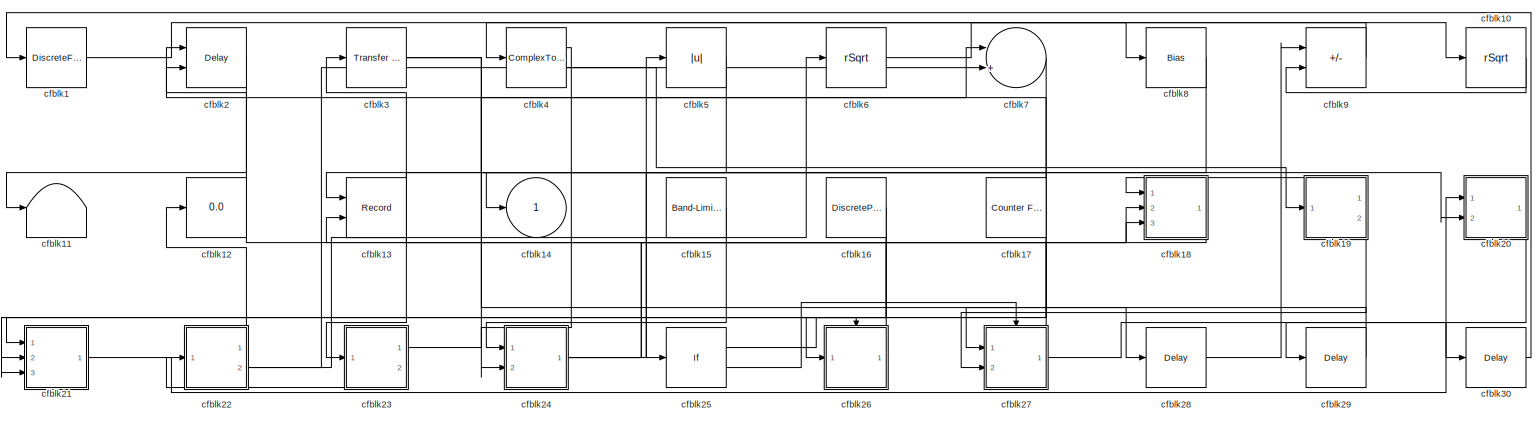
[diagram: root canvas - part 1/1, most of the canvas]
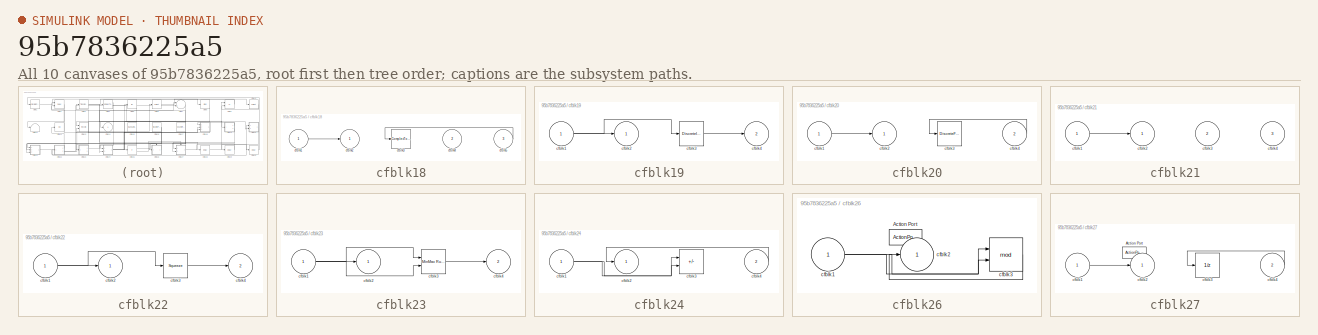
[diagram: thumbnail index - all 10 canvases of the model, root first then tree order]
MODEL slx_95b7836225a5
KIND model
CONFIG AbsTol = auto
CONFIG EnableMultiTasking = off
CONFIG FixedStep = auto
CONFIG MaxStep = auto
CONFIG MinStep = auto
CONFIG RelTol = 1e-3
CONFIG SampleTimeConstraint = Unconstrained
CONFIG SolverName = VariableStepAuto
CONFIG StartTime = 0.0
CONFIG StopTime = 10.0
BLOCK [DiscreteFilter] cfblk1
  InputPortMap = u0
  Ports = [1, 1]
  SampleTime = 1
BLOCK [Sqrt] cfblk10
  AlgorithmType = Newton-Raphson
  Operator = rSqrt
BLOCK [Terminator] cfblk11
BLOCK [Display] cfblk12
  Decimation = 1
  Ports = [1]
BLOCK [Record] cfblk13
  CompatibilityTag = XY
  FileSettingsInternal = {"entries":[{"content":{"excelSettings":{"content":{},"type":"Streamout.ExcelSettings"}},"type":"Streamout.FileSettingStorage","uuid":"12464234-0123-4500-b757-1bcb142e4388"}],"packageUris":["http://schema.mathworks.com/mf0/streamout_blocks/R2020a"],"version":"1.0"}
  Layout = [1 1]
  Ports = [2]
  SignalsInternal = {"entries":[{"content":{"signals":[{"content":{"blockPath":["sampleModel10/cfblk13"],"channel":[],"dimensions":[1],"domain":"sampleModel10/cfblk13","lineColor":"#a2142f","plots":[1],"port":1,"sid":[""],"signalID":351,"signalName":"cfblk7"},"type":"RecordBlkView.Signal","uuid":"addf4039-dc77-4d44-b335-c1f742a5f9f0"},{"content":{"blockPath":["sampleModel10/cfblk13"],"channel":[],"dimensions":[1],"do...<+376ch>
  VisualizationBindings = {"xyplotplugin":{"info":[{"series":[{"bindingParametersList":[{"parameter":"X-Axis","signalID":351,"signalName":"cfblk7"},{"parameter":"Y-Axis","signalID":355,"signalName":"cfblk18"}],"seriesID":13934}],"subplotID":1}]}}
BLOCK [Outport] cfblk14
BLOCK [Reference] cfblk15  REF=simulink/Sources/Band-Limited
White Noise
  Ports = [0, 1]
  SourceBlock = simulink/Sources/Band-Limited\nWhite Noise
  SourceProductBaseCode = SL
  SourceType = Band-Limited White Noise.
BLOCK [DiscretePulseGenerator] cfblk16
  Amplitude = [417409233.958450]
  Period = [99292844.137471]
  PhaseDelay = [2.000000]
  Ports = [0, 1]
  PulseType = Time based
  PulseWidth = 5
BLOCK [Reference] cfblk17  REF=simulink/Sources/Counter
Free-Running
  Ports = [0, 1]
  SourceBlock = simulink/Sources/Counter\nFree-Running
  SourceProductBaseCode = SL
  SourceType = Counter Free-Running
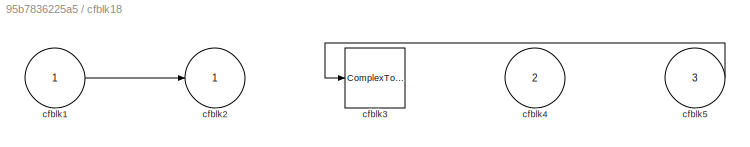
BLOCK [SubSystem] cfblk18
  Ports = [3, 1]
  RequestExecContextInheritance = off
BLOCK [Inport] cfblk18/cfblk1
BLOCK [Outport] cfblk18/cfblk2
BLOCK [ComplexToRealImag] cfblk18/cfblk3
  Ports = [1, 2]
BLOCK [Inport] cfblk18/cfblk4
  Port = 2
BLOCK [Inport] cfblk18/cfblk5
  Port = 3
BLOCK [SubSystem] cfblk19
  Ports = [1, 2]
  RequestExecContextInheritance = off
BLOCK [Inport] cfblk19/cfblk1
BLOCK [Outport] cfblk19/cfblk2
BLOCK [DiscreteIntegrator] cfblk19/cfblk3
  ICPrevOutput = DiscIntNeverNeededParam
  ICPrevScaledInput = DiscIntNeverNeededParam
  InitialConditionSetting = Auto
  Ports = [1, 1]
BLOCK [Outport] cfblk19/cfblk4
  Port = 2
BLOCK [Delay] cfblk2
  DelayLengthSource = Input port
  InputPortMap = u0,p1
  Ports = [2, 1]
  SampleTime = 1
BLOCK [SubSystem] cfblk20
  Ports = [2, 1]
  RequestExecContextInheritance = off
BLOCK [Inport] cfblk20/cfblk1
BLOCK [Outport] cfblk20/cfblk2
BLOCK [DiscreteFilter] cfblk20/cfblk3
  InputPortMap = u0
  Ports = [1, 1]
  SampleTime = 1
BLOCK [Inport] cfblk20/cfblk4
  Port = 2
BLOCK [SubSystem] cfblk21
  Ports = [3, 1]
  RequestExecContextInheritance = off
BLOCK [Inport] cfblk21/cfblk1
BLOCK [Outport] cfblk21/cfblk2
BLOCK [Inport] cfblk21/cfblk3
  Port = 2
BLOCK [Inport] cfblk21/cfblk4
  Port = 3
BLOCK [SubSystem] cfblk22
  Ports = [1, 2]
  RequestExecContextInheritance = off
BLOCK [Inport] cfblk22/cfblk1
BLOCK [Outport] cfblk22/cfblk2
BLOCK [Squeeze] cfblk22/cfblk3
BLOCK [Outport] cfblk22/cfblk4
  Port = 2
BLOCK [SubSystem] cfblk23
  Ports = [1, 2]
  RequestExecContextInheritance = off
BLOCK [Inport] cfblk23/cfblk1
BLOCK [Outport] cfblk23/cfblk2
BLOCK [Reference] cfblk23/cfblk3  REF=simulink/Math
Operations/MinMax
Running
Resettable
  Ports = [2, 1]
  SourceBlock = simulink/Math\nOperations/MinMax\nRunning\nResettable
  SourceProductBaseCode = SL
  SourceType = MinMax Running Resettable
BLOCK [Outport] cfblk23/cfblk4
  Port = 2
BLOCK [SubSystem] cfblk24
  Ports = [2, 1]
  RequestExecContextInheritance = off
BLOCK [Inport] cfblk24/cfblk1
BLOCK [Outport] cfblk24/cfblk2
BLOCK [Sum] cfblk24/cfblk3
  IconShape = rectangular
  Inputs = +-
  Ports = [2, 1]
BLOCK [Inport] cfblk24/cfblk4
  Port = 2
BLOCK [If] cfblk25
  IfExpression = u1 >= 0
  Ports = [1, 2]
  SampleTime = 1
BLOCK [SubSystem] cfblk26
  Ports = [1, 1, 0, 0, 0, 0, 0, 1]
  RequestExecContextInheritance = off
  TreatAsAtomicUnit = on
BLOCK [ActionPort] cfblk26/Action Port
  ActionPortLabel = if(u1 >= 0)
BLOCK [Inport] cfblk26/cfblk1
BLOCK [Outport] cfblk26/cfblk2
BLOCK [Math] cfblk26/cfblk3
  Operator = mod
  Ports = [2, 1]
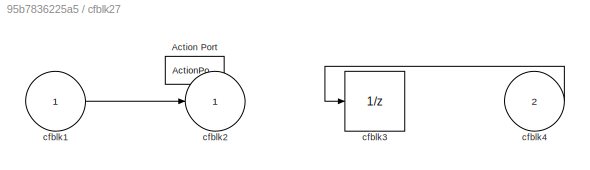
BLOCK [SubSystem] cfblk27
  Ports = [2, 1, 0, 0, 0, 0, 0, 1]
  RequestExecContextInheritance = off
  TreatAsAtomicUnit = on
BLOCK [ActionPort] cfblk27/Action Port
  ActionPortLabel = else
BLOCK [Inport] cfblk27/cfblk1
BLOCK [Outport] cfblk27/cfblk2
BLOCK [UnitDelay] cfblk27/cfblk3
  HasFrameUpgradeWarning = on
  SampleTime = -1
BLOCK [Inport] cfblk27/cfblk4
  Port = 2
BLOCK [Delay] cfblk28
  InputPortMap = u0
  Ports = [1, 1]
  SampleTime = 1
BLOCK [Delay] cfblk29
  InputPortMap = u0
  Ports = [1, 1]
  SampleTime = 1
BLOCK [Reference] cfblk3  REF=simulink/Discrete/Transfer Fcn
Real Zero
  Ports = [1, 1]
  SourceBlock = simulink/Discrete/Transfer Fcn\nReal Zero
  SourceProductBaseCode = SL
  SourceType = Transfer Fcn Real Zero
BLOCK [Delay] cfblk30
  InputPortMap = u0
  Ports = [1, 1]
  SampleTime = 1
BLOCK [ComplexToRealImag] cfblk4
  Ports = [1, 2]
BLOCK [Abs] cfblk5
  SaturateOnIntegerOverflow = off
BLOCK [Sqrt] cfblk6
  AlgorithmType = Newton-Raphson
  Operator = rSqrt
BLOCK [Sum] cfblk7
  Inputs = |++
  Ports = [2, 1]
BLOCK [Bias] cfblk8
  Bias = [-398381818.678550]
  SaturateOnIntegerOverflow = off
BLOCK [Sum] cfblk9
  IconShape = rectangular
  Inputs = --
  Ports = [2, 1]
LINE cfblk10:1 -> cfblk9:2
LINE cfblk15:1 -> cfblk24:1
NET cfblk16:1 -> cfblk21:1, cfblk26:1
NET cfblk17:1 -> cfblk14:1, cfblk21:2, cfblk21:3, cfblk2:2
LINE cfblk18/cfblk1:1 -> cfblk18/cfblk2:1
LINE cfblk18/cfblk5:1 -> cfblk18/cfblk3:1
LINE cfblk18:1 -> cfblk13:2
NET cfblk19/cfblk1:1 -> cfblk19/cfblk2:1, cfblk19/cfblk3:1
LINE cfblk19/cfblk3:1 -> cfblk19/cfblk4:1
LINE cfblk19:1 -> cfblk18:1
LINE cfblk19:2 -> cfblk27:2
LINE cfblk1:1 -> cfblk10:1
LINE cfblk20/cfblk1:1 -> cfblk20/cfblk2:1
LINE cfblk20/cfblk4:1 -> cfblk20/cfblk3:1
LINE cfblk20:1 -> cfblk29:1
LINE cfblk21/cfblk1:1 -> cfblk21/cfblk2:1
LINE cfblk21:1 -> cfblk20:1
NET cfblk22/cfblk1:1 -> cfblk22/cfblk2:1, cfblk22/cfblk3:1
LINE cfblk22/cfblk3:1 -> cfblk22/cfblk4:1
LINE cfblk22:1 -> cfblk12:1
NET cfblk22:2 -> cfblk6:1, cfblk7:2
NET cfblk23/cfblk1:1 -> cfblk23/cfblk2:1, cfblk23/cfblk3:1, cfblk23/cfblk3:2
LINE cfblk23/cfblk3:1 -> cfblk23/cfblk4:1
LINE cfblk23:1 -> cfblk7:1
LINE cfblk23:2 -> cfblk22:1
NET cfblk24/cfblk1:1 -> cfblk24/cfblk3:1, cfblk24/cfblk3:2
LINE cfblk24/cfblk4:1 -> cfblk24/cfblk2:1
NET cfblk24:1 -> cfblk18:2, cfblk18:3, cfblk5:1
LINE cfblk25:1 -> cfblk26:ifaction
LINE cfblk25:2 -> cfblk27:ifaction
NET cfblk26/cfblk1:1 -> cfblk26/cfblk3:1, cfblk26/cfblk3:2
LINE cfblk26/cfblk3:1 -> cfblk26/cfblk2:1
LINE cfblk26:1 -> cfblk3:1
LINE cfblk27/cfblk1:1 -> cfblk27/cfblk2:1
LINE cfblk27/cfblk4:1 -> cfblk27/cfblk3:1
NET cfblk27:1 -> cfblk2:1, cfblk30:1
LINE cfblk28:1 -> cfblk9:1
LINE cfblk29:1 -> cfblk27:1
LINE cfblk2:1 -> cfblk11:1
LINE cfblk30:1 -> cfblk1:1
NET cfblk3:1 -> cfblk20:2, cfblk28:1
LINE cfblk4:1 -> cfblk24:2
LINE cfblk4:2 -> cfblk19:1
LINE cfblk5:1 -> cfblk23:1
LINE cfblk6:1 -> cfblk8:1
LINE cfblk7:1 -> cfblk13:1
LINE cfblk8:1 -> cfblk25:1
LINE cfblk9:1 -> cfblk4:1
note: NET lines group one-source signal fan-out (src -> all destinations, sorted); 1:1 wires keep LINE
